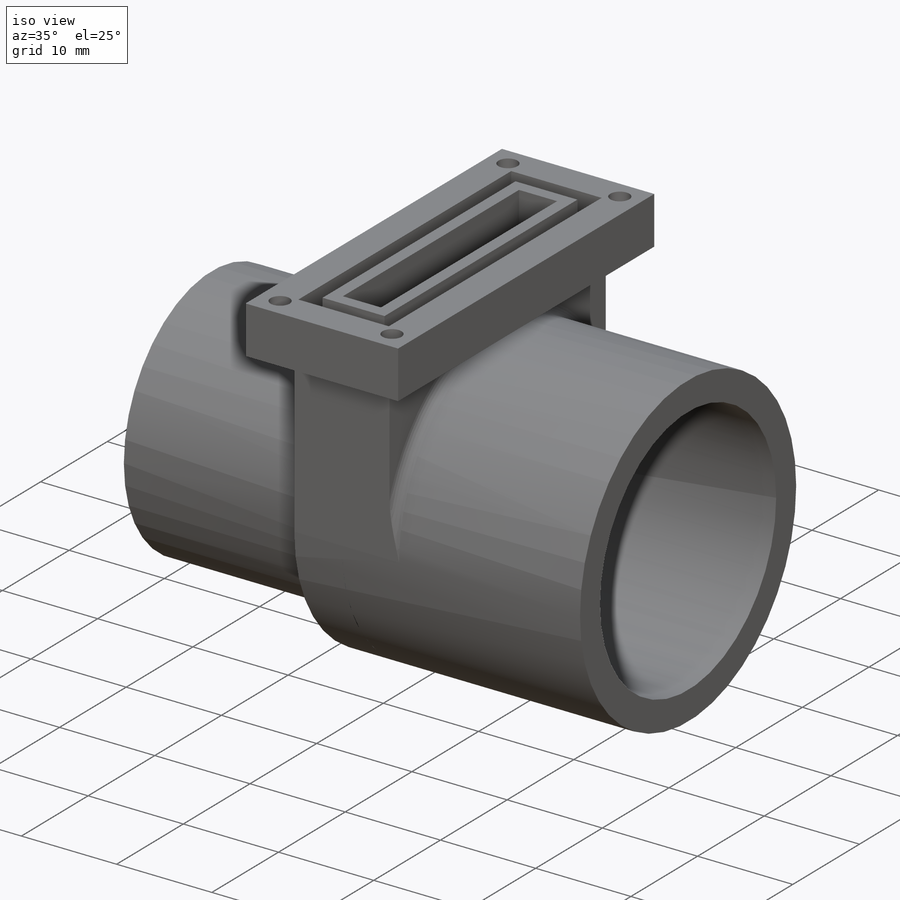
[diagram: iso view]
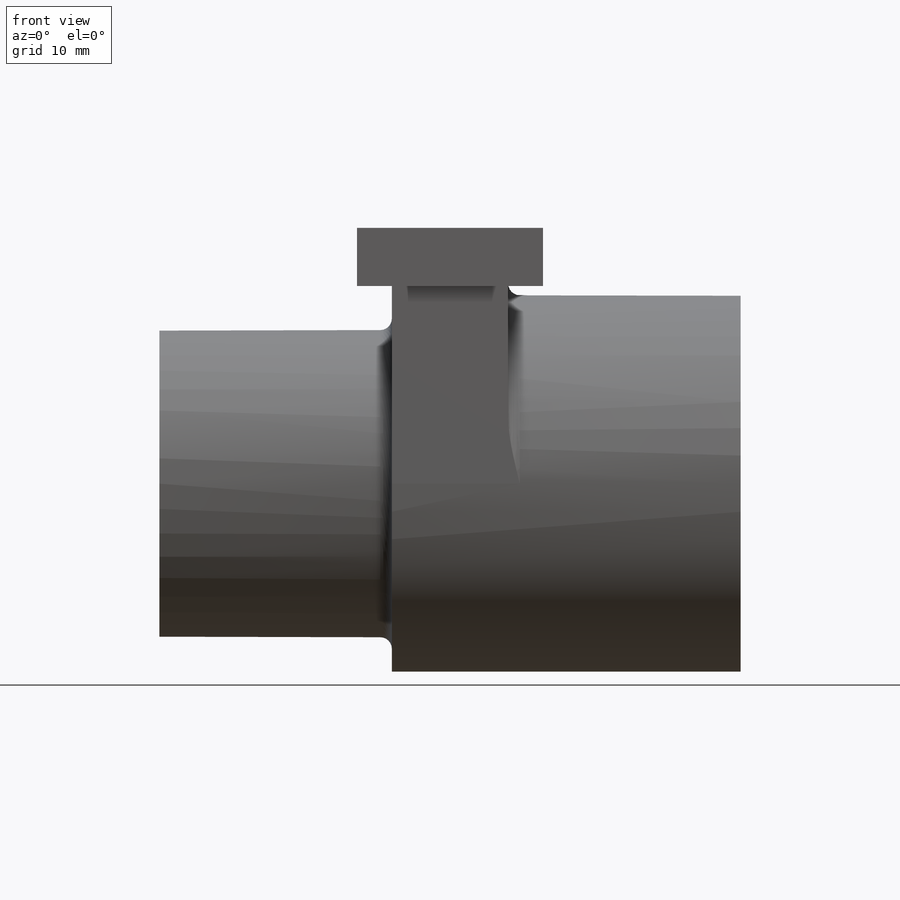
[diagram: front view]
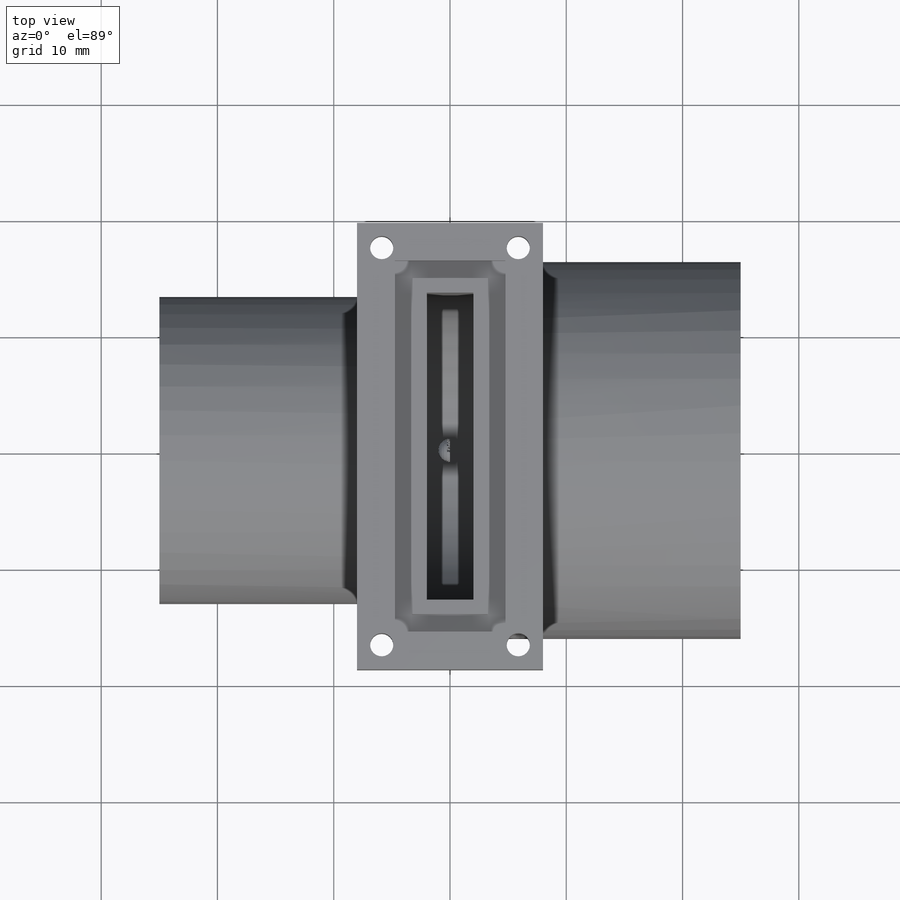
[diagram: top view]
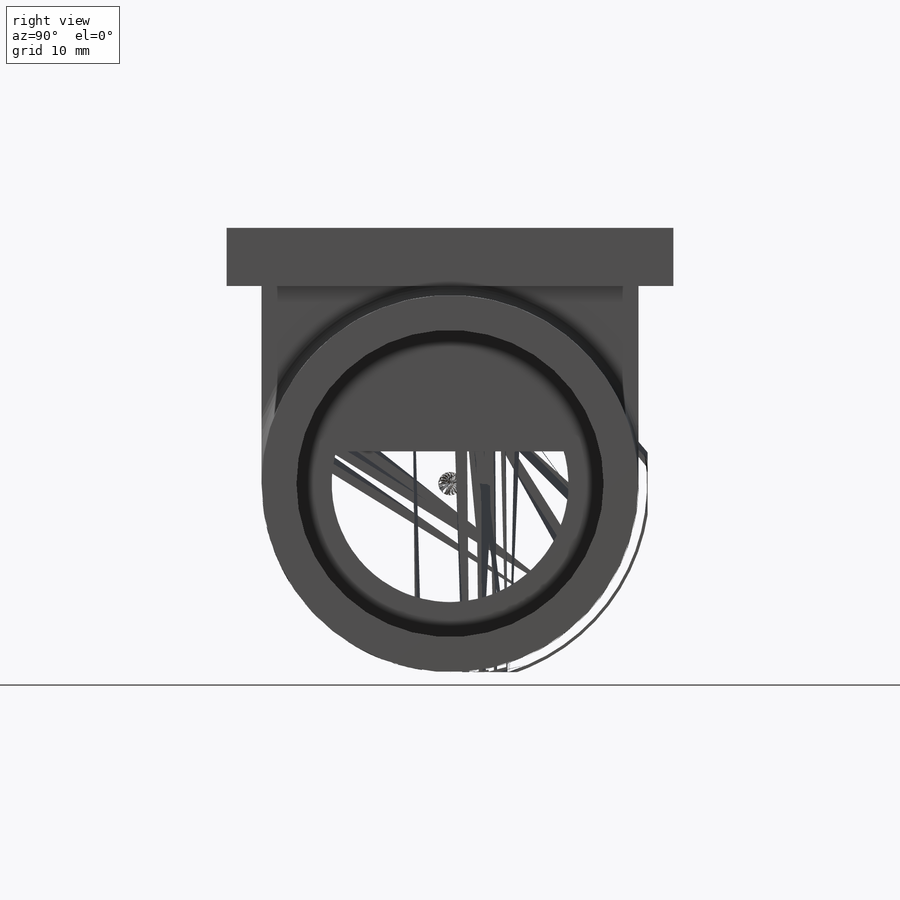
[diagram: right view]
SOLIDWORKS PART (.sldprt)
format: sldprt  version: not decoded by parser v0  size: 411,136 bytes
history: native  units: mm
features: sketch x9, extrude x4, cut_extrude x3, fillet x2, plane x2, mirror x2, material x1 (+13 scaffold rows collapsed)
feature tree (36):
  scaffold x13  (default folders/planes/origin — collapsed)
  material  "ABS"
  sketch  "Sketch1"  dims[D1=26.42mm D2=20.42mm D3=32.42mm]
  extrude  "Boss-Extrude1"  Depth=25mm
  extrude  "Boss-Extrude2"  [1 undecoded]
  sketch  "Sketch1<3>"  dims[D1=25.0mm]
  sketch  "Sketch3"  dims[D1=10.0mm D2=32.42mm]
  extrude  "Boss-Extrude3"  Depth=30mm
  sketch  "Sketch5"  dims[D1=4.0mm D2=3.0mm]
  cut_extrude  "Cut-Extrude4"  Depth=3mm
  sketch  "Sketch6"  dims[D1=13.0mm]
  cut_extrude  "Cut-Extrude5"  [1 undecoded]
  fillet  "Fillet1"  Radius=1mm
  fillet  "Fillet2"  Radius=1mm
  sketch  "Sketch11"  dims[D1=3.0mm D2=3.0mm]
  extrude  "Boss-Extrude5"  Depth=5mm
  sketch  "Sketch12"  dims[D1=2.0mm D2=2.0mm]
  sketch  "Sketch13"  dims[c1.2=2.0mm c1.D2=2.0mm c1.D1=2.0mm c2.D2=2.0mm]
  cut_extrude  "Cut-Extrude6"  [1 undecoded]
  sketch  "Sketch14"
  plane  "Plane1"
  plane  "Plane2"
  mirror  "Mirror1"
  mirror  "Mirror2"
decode coverage: 14 of 20 modeling features carry decoded parameters
note: 3 parameter values undecoded
summary: no parameter record found for 3 features
note: suppression state not decoded; provenance and decode notes live in map.json
